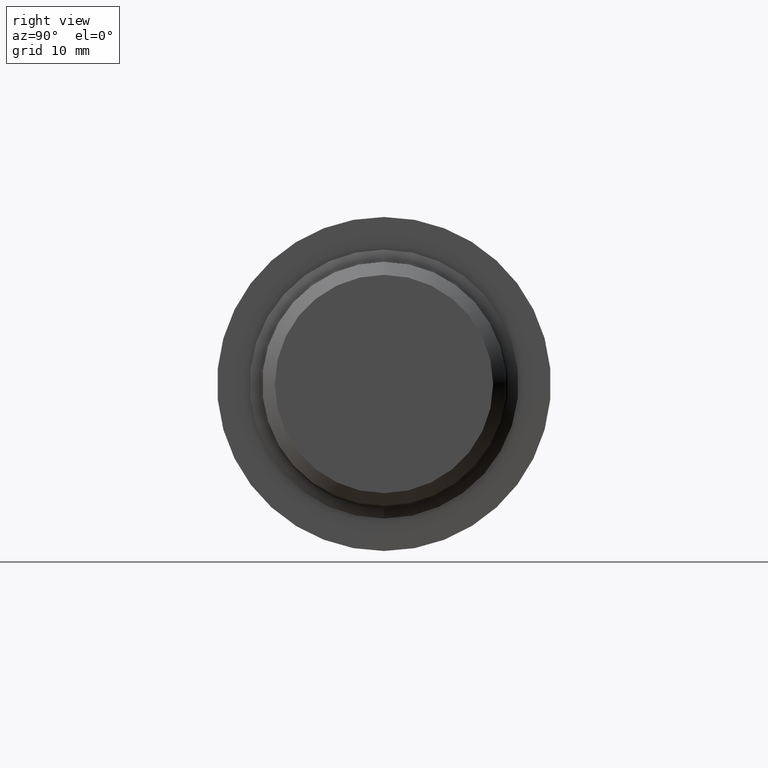
[diagram: clean part render]
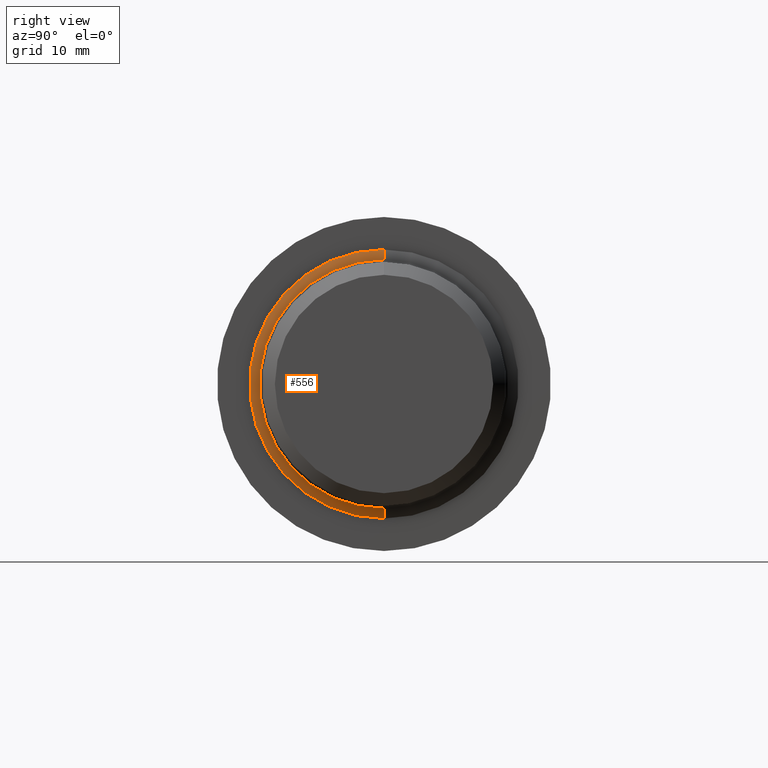
[diagram: same view with one face highlighted and labeled with its STEP entity id]
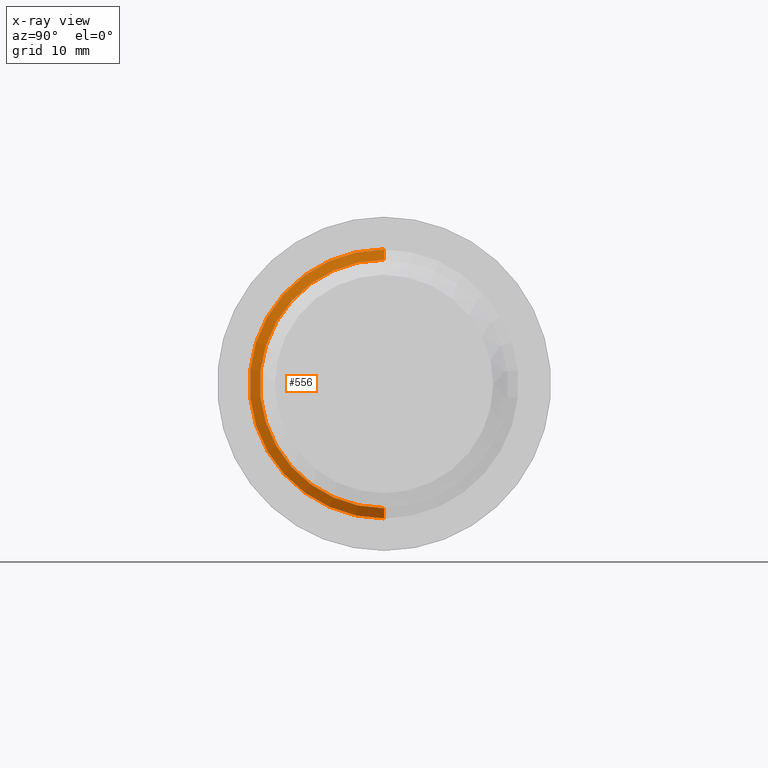
[diagram: x-ray of the same camera — body ghosted, the highlighted face saturated]
A machine part, right view. The second image highlights one B-rep face of the part: STEP entity #556.
The next image is the same camera in x-ray: the body ghosted, the highlighted face saturated — about 0% of this face is hidden behind the body in this view.
In plain terms, the highlighted conical surface has half-angle 60 deg.
Its self-contained STEP definition (entity closure, byte-faithful):
#7 = LINE ( 'NONE', #502, #387 ) ;
#8 = ORIENTED_EDGE ( 'NONE', *, *, #373, .F. ) ;
#18 = ORIENTED_EDGE ( 'NONE', *, *, #364, .T. ) ;
#23 = VERTEX_POINT ( 'NONE', #634 ) ;
#35 = VERTEX_POINT ( 'NONE', #193 ) ;
#57 = DIRECTION ( 'NONE',  ( 0.000000000000000000, 0.000000000000000000, 1.000000000000000000 ) ) ;
#87 = ORIENTED_EDGE ( 'NONE', *, *, #699, .T. ) ;
#137 = CARTESIAN_POINT ( 'NONE',  ( 3.286999999999999478, 0.000000000000000000, 0.000000000000000000 ) ) ;
#174 = VERTEX_POINT ( 'NONE', #711 ) ;
#188 = CARTESIAN_POINT ( 'NONE',  ( 3.323892682201216697, 9.522853510169822351E-17, -0.7776000000000002910 ) ) ;
#193 = CARTESIAN_POINT ( 'NONE',  ( 3.286999999999999478, 0.000000000000000000, 0.8415000000000000258 ) ) ;
#251 = AXIS2_PLACEMENT_3D ( 'NONE', #451, #619, #57 ) ;
#258 = EDGE_LOOP ( 'NONE', ( #8, #87, #18, #684 ) ) ;
#290 = VECTOR ( 'NONE', #620, 39.37007874015748143 ) ;
#304 = CONICAL_SURFACE ( 'NONE', #368, 0.7775999999999999579, 1.047197551196598297 ) ;
#315 = CIRCLE ( 'NONE', #516, 0.8415000000000000258 ) ;
#360 = VERTEX_POINT ( 'NONE', #188 ) ;
#364 = EDGE_CURVE ( 'NONE', #174, #35, #401, .T. ) ;
#365 = DIRECTION ( 'NONE',  ( 0.000000000000000000, 0.000000000000000000, 1.000000000000000000 ) ) ;
#368 = AXIS2_PLACEMENT_3D ( 'NONE', #433, #489, #594 ) ;
#373 = EDGE_CURVE ( 'NONE', #360, #23, #7, .T. ) ;
#387 = VECTOR ( 'NONE', #720, 39.37007874015748143 ) ;
#401 = LINE ( 'NONE', #411, #290 ) ;
#411 = CARTESIAN_POINT ( 'NONE',  ( 3.323892682201216697, 0.000000000000000000, 0.7775999999999999579 ) ) ;
#433 = CARTESIAN_POINT ( 'NONE',  ( 3.323892682201216697, 0.000000000000000000, 0.000000000000000000 ) ) ;
#451 = CARTESIAN_POINT ( 'NONE',  ( 3.323892682201216697, 0.000000000000000000, 0.000000000000000000 ) ) ;
#481 = EDGE_CURVE ( 'NONE', #23, #35, #315, .T. ) ;
#489 = DIRECTION ( 'NONE',  ( -1.000000000000000000, -0.000000000000000000, -0.000000000000000000 ) ) ;
#502 = CARTESIAN_POINT ( 'NONE',  ( 3.323892682201216697, 9.522853510169818653E-17, -0.7775999999999999579 ) ) ;
#516 = AXIS2_PLACEMENT_3D ( 'NONE', #137, #584, #365 ) ;
#556 = ADVANCED_FACE ( 'NONE', ( #710 ), #304, .T. ) ;
#584 = DIRECTION ( 'NONE',  ( -1.000000000000000000, -0.000000000000000000, -0.000000000000000000 ) ) ;
#594 = DIRECTION ( 'NONE',  ( 0.000000000000000000, 0.000000000000000000, 1.000000000000000000 ) ) ;
#619 = DIRECTION ( 'NONE',  ( -1.000000000000000000, -0.000000000000000000, -0.000000000000000000 ) ) ;
#620 = DIRECTION ( 'NONE',  ( -0.4999999999999994449, 0.000000000000000000, 0.8660254037844389297 ) ) ;
#634 = CARTESIAN_POINT ( 'NONE',  ( 3.286999999999999478, 1.030540281482497722E-16, -0.8415000000000000258 ) ) ;
#684 = ORIENTED_EDGE ( 'NONE', *, *, #481, .F. ) ;
#690 = CIRCLE ( 'NONE', #251, 0.7775999999999999579 ) ;
#699 = EDGE_CURVE ( 'NONE', #360, #174, #690, .T. ) ;
#710 = FACE_OUTER_BOUND ( 'NONE', #258, .T. ) ;
#711 = CARTESIAN_POINT ( 'NONE',  ( 3.323892682201216697, 0.000000000000000000, 0.7776000000000002910 ) ) ;
#720 = DIRECTION ( 'NONE',  ( -0.4999999999999994449, 1.060575238724907285E-16, -0.8660254037844389297 ) ) ;